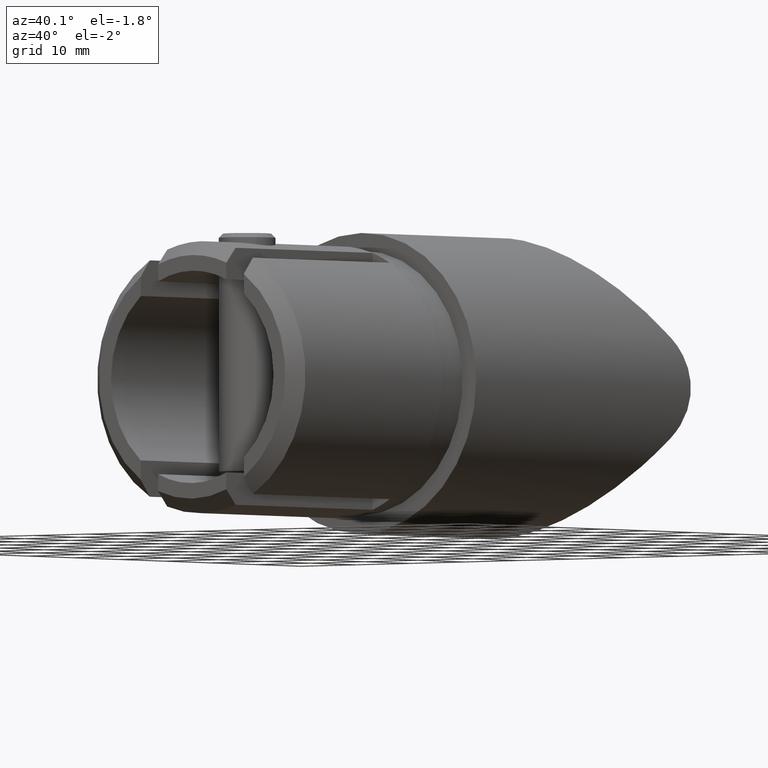
[diagram: clean part render]
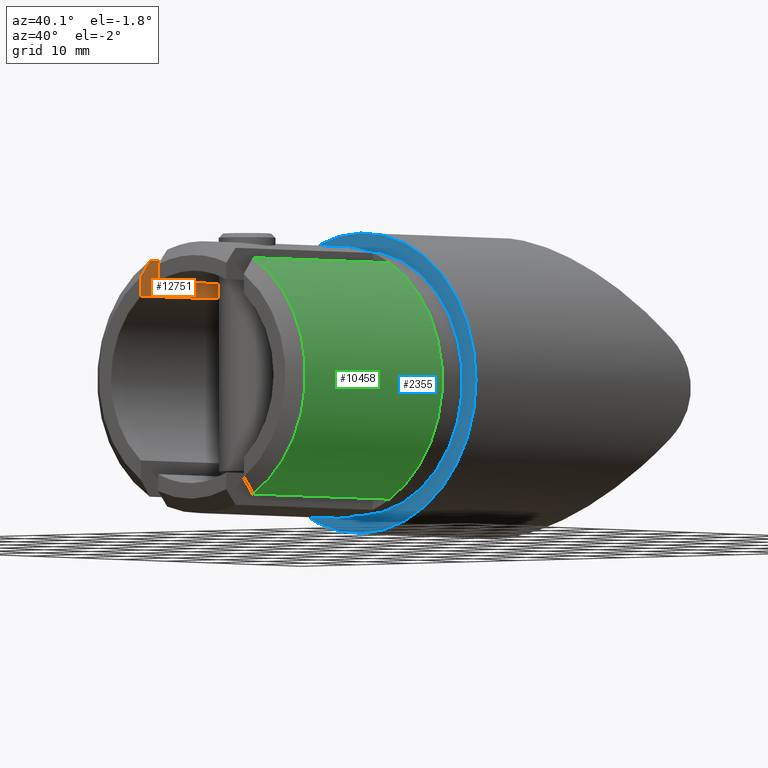
[diagram: same view with three faces highlighted in distinct colors, each labeled with its STEP entity id]
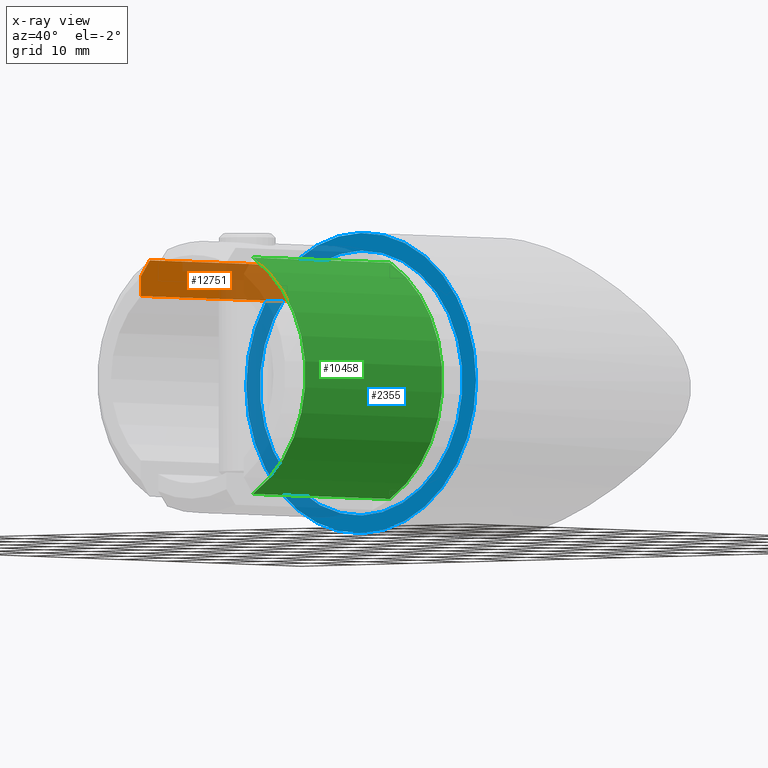
[diagram: x-ray of the same camera — body ghosted, the three highlighted faces saturated]
A machine part, auxiliary view with three faces highlighted in distinct colors.
The next image is the same camera in x-ray (body ghosted, the three faces saturated) — at least one of them is partly hidden behind the body in this view.
Their STEP definitions:

[orange] entity #12751 — the highlighted planar face has unit normal (-1, -0, 0).
#50 = FACE_OUTER_BOUND ( 'NONE', #6334, .T. ) ;
#285 = EDGE_CURVE ( 'NONE', #9121, #7372, #12493, .T. ) ;
#553 = EDGE_CURVE ( 'NONE', #11527, #7372, #5329, .T. ) ;
#873 = VERTEX_POINT ( 'NONE', #9407 ) ;
#2030 = CARTESIAN_POINT ( 'NONE',  ( -9.500000000000000000, -4.999999999999992900, -21.19999999999999900 ) ) ;
#2257 = CARTESIAN_POINT ( 'NONE',  ( -9.500000000000000000, -4.999999999999992900, 16.68502322443694300 ) ) ;
#2274 = VECTOR ( 'NONE', #9682, 1000.000000000000000 ) ;
#2379 = CARTESIAN_POINT ( 'NONE',  ( -9.499999999999996400, -36.34155602263394500, 15.12826297416007800 ) ) ;
#2423 = CARTESIAN_POINT ( 'NONE',  ( -9.499999999999996400, -37.00000000000000000, -21.19999999999999900 ) ) ;
#2469 = DIRECTION ( 'NONE',  ( 1.084202172485504200E-016, -1.000000000000000000, 0.0000000000000000000 ) ) ;
#2499 = EDGE_CURVE ( 'NONE', #9121, #873, #12051, .T. ) ;
#3281 = LINE ( 'NONE', #2423, #7514 ) ;
#4353 = DIRECTION ( 'NONE',  ( -0.0000000000000000000, -0.0000000000000000000, 1.000000000000000000 ) ) ;
#4576 = AXIS2_PLACEMENT_3D ( 'NONE', #11798, #8711, #2469 ) ;
#4701 = CARTESIAN_POINT ( 'NONE',  ( -9.499999999999996400, -35.00000000000000700, 16.68502322443693900 ) ) ;
#5329 = LINE ( 'NONE', #6513, #2274 ) ;
#5492 = EDGE_CURVE ( 'NONE', #11527, #7972, #8843, .T. ) ;
#6334 = EDGE_LOOP ( 'NONE', ( #11752, #12559, #11016, #11866, #9099 ) ) ;
#6513 = CARTESIAN_POINT ( 'NONE',  ( -9.499999999999996400, -37.00000000000000000, 16.68502322443693900 ) ) ;
#7372 = VERTEX_POINT ( 'NONE', #2257 ) ;
#7505 = CARTESIAN_POINT ( 'NONE',  ( -9.499999999999996400, -35.00000000000000700, 16.68502322443693900 ) ) ;
#7514 = VECTOR ( 'NONE', #4353, 1000.000000000000000 ) ;
#7666 = PLANE ( 'NONE',  #4576 ) ;
#7972 = VERTEX_POINT ( 'NONE', #9033 ) ;
#8151 = CARTESIAN_POINT ( 'NONE',  ( -9.500000000000000000, -4.999999999999992900, 11.60818676624390000 ) ) ;
#8711 = DIRECTION ( 'NONE',  ( -1.000000000000000000, -1.084202172485504200E-016, 0.0000000000000000000 ) ) ;
#8843 = B_SPLINE_CURVE_WITH_KNOTS ( 'NONE', 3,
 ( #7505, #9688, #2379, #9648 ),
 .UNSPECIFIED., .F., .F.,
 ( 4, 4 ),
 ( 0.03365632216462369200, 0.03673669280061393800 ),
 .UNSPECIFIED. ) ;
#9033 = CARTESIAN_POINT ( 'NONE',  ( -9.499999999999996400, -37.00000000000000000, 14.33840995368736200 ) ) ;
#9099 = ORIENTED_EDGE ( 'NONE', *, *, #553, .F. ) ;
#9121 = VERTEX_POINT ( 'NONE', #8151 ) ;
#9253 = DIRECTION ( 'NONE',  ( -0.0000000000000000000, -0.0000000000000000000, 1.000000000000000000 ) ) ;
#9407 = CARTESIAN_POINT ( 'NONE',  ( -9.499999999999996400, -37.00000000000000000, 11.60818676624389800 ) ) ;
#9648 = CARTESIAN_POINT ( 'NONE',  ( -9.499999999999996400, -37.00000000000000000, 14.33840995368736200 ) ) ;
#9682 = DIRECTION ( 'NONE',  ( -0.0000000000000000000, 1.000000000000000000, -0.0000000000000000000 ) ) ;
#9688 = CARTESIAN_POINT ( 'NONE',  ( -9.499999999999996400, -35.67389875770415800, 15.90954596115274100 ) ) ;
#10590 = EDGE_CURVE ( 'NONE', #873, #7972, #3281, .T. ) ;
#11016 = ORIENTED_EDGE ( 'NONE', *, *, #2499, .F. ) ;
#11157 = VECTOR ( 'NONE', #9253, 1000.000000000000000 ) ;
#11380 = DIRECTION ( 'NONE',  ( -0.0000000000000000000, -1.000000000000000000, -0.0000000000000000000 ) ) ;
#11527 = VERTEX_POINT ( 'NONE', #4701 ) ;
#11752 = ORIENTED_EDGE ( 'NONE', *, *, #5492, .T. ) ;
#11798 = CARTESIAN_POINT ( 'NONE',  ( -9.500000000000000000, -4.999999999999992900, -21.19999999999999900 ) ) ;
#11866 = ORIENTED_EDGE ( 'NONE', *, *, #285, .T. ) ;
#12051 = LINE ( 'NONE', #12381, #12398 ) ;
#12381 = CARTESIAN_POINT ( 'NONE',  ( -9.500000000000001800, 9.000000000000000000, 11.60818676624389800 ) ) ;
#12398 = VECTOR ( 'NONE', #11380, 1000.000000000000000 ) ;
#12493 = LINE ( 'NONE', #2030, #11157 ) ;
#12559 = ORIENTED_EDGE ( 'NONE', *, *, #10590, .F. ) ;
#12751 = ADVANCED_FACE ( 'NONE', ( #50 ), #7666, .F. ) ;

[blue] entity #2355 — the highlighted planar face has unit normal (0, 1, 0).
#40 = CARTESIAN_POINT ( 'NONE',  ( 0.0000000000000000000, 0.0000000000000000000, -21.19999999999999900 ) ) ;
#275 = DIRECTION ( 'NONE',  ( -0.0000000000000000000, -1.000000000000000000, -0.0000000000000000000 ) ) ;
#523 = CIRCLE ( 'NONE', #12603, 18.69999999999999900 ) ;
#652 = CARTESIAN_POINT ( 'NONE',  ( 2.290089514405550500E-015, 0.0000000000000000000, -18.69999999999999900 ) ) ;
#765 = PLANE ( 'NONE',  #4675 ) ;
#1219 = CARTESIAN_POINT ( 'NONE',  ( 0.0000000000000000000, 0.0000000000000000000, 0.0000000000000000000 ) ) ;
#1464 = EDGE_CURVE ( 'NONE', #2738, #8972, #9694, .T. ) ;
#1760 = DIRECTION ( 'NONE',  ( 0.0000000000000000000, 1.000000000000000000, 0.0000000000000000000 ) ) ;
#2125 = CARTESIAN_POINT ( 'NONE',  ( 0.0000000000000000000, 0.0000000000000000000, 18.69999999999999900 ) ) ;
#2138 = VERTEX_POINT ( 'NONE', #40 ) ;
#2355 = ADVANCED_FACE ( 'NONE', ( #11225, #13052 ), #765, .F. ) ;
#2365 = DIRECTION ( 'NONE',  ( 0.0000000000000000000, 0.0000000000000000000, 1.000000000000000000 ) ) ;
#2565 = CIRCLE ( 'NONE', #6534, 21.19999999999999900 ) ;
#2660 = CARTESIAN_POINT ( 'NONE',  ( 0.0000000000000000000, 0.0000000000000000000, 0.0000000000000000000 ) ) ;
#2725 = AXIS2_PLACEMENT_3D ( 'NONE', #1219, #3233, #11653 ) ;
#2738 = VERTEX_POINT ( 'NONE', #2125 ) ;
#3168 = AXIS2_PLACEMENT_3D ( 'NONE', #8802, #11939, #5675 ) ;
#3233 = DIRECTION ( 'NONE',  ( 0.0000000000000000000, 1.000000000000000000, 0.0000000000000000000 ) ) ;
#3672 = ORIENTED_EDGE ( 'NONE', *, *, #1464, .F. ) ;
#3789 = DIRECTION ( 'NONE',  ( 0.0000000000000000000, 0.0000000000000000000, 1.000000000000000000 ) ) ;
#4675 = AXIS2_PLACEMENT_3D ( 'NONE', #2660, #9080, #12097 ) ;
#4885 = EDGE_LOOP ( 'NONE', ( #7173, #6849 ) ) ;
#5675 = DIRECTION ( 'NONE',  ( 0.0000000000000000000, 0.0000000000000000000, 1.000000000000000000 ) ) ;
#6534 = AXIS2_PLACEMENT_3D ( 'NONE', #11105, #1760, #3789 ) ;
#6849 = ORIENTED_EDGE ( 'NONE', *, *, #7969, .F. ) ;
#7173 = ORIENTED_EDGE ( 'NONE', *, *, #7820, .F. ) ;
#7467 = EDGE_LOOP ( 'NONE', ( #3672, #12373 ) ) ;
#7490 = CARTESIAN_POINT ( 'NONE',  ( 2.596251214192388800E-015, 0.0000000000000000000, 21.19999999999999900 ) ) ;
#7820 = EDGE_CURVE ( 'NONE', #2138, #11123, #11972, .T. ) ;
#7969 = EDGE_CURVE ( 'NONE', #11123, #2138, #2565, .T. ) ;
#8802 = CARTESIAN_POINT ( 'NONE',  ( 0.0000000000000000000, 0.0000000000000000000, 0.0000000000000000000 ) ) ;
#8972 = VERTEX_POINT ( 'NONE', #652 ) ;
#9080 = DIRECTION ( 'NONE',  ( 0.0000000000000000000, 1.000000000000000000, 0.0000000000000000000 ) ) ;
#9694 = CIRCLE ( 'NONE', #3168, 18.69999999999999900 ) ;
#11072 = EDGE_CURVE ( 'NONE', #8972, #2738, #523, .T. ) ;
#11105 = CARTESIAN_POINT ( 'NONE',  ( 0.0000000000000000000, 0.0000000000000000000, 0.0000000000000000000 ) ) ;
#11123 = VERTEX_POINT ( 'NONE', #7490 ) ;
#11225 = FACE_BOUND ( 'NONE', #7467, .T. ) ;
#11653 = DIRECTION ( 'NONE',  ( 0.0000000000000000000, 0.0000000000000000000, 1.000000000000000000 ) ) ;
#11678 = CARTESIAN_POINT ( 'NONE',  ( 0.0000000000000000000, 0.0000000000000000000, 0.0000000000000000000 ) ) ;
#11939 = DIRECTION ( 'NONE',  ( -0.0000000000000000000, -1.000000000000000000, -0.0000000000000000000 ) ) ;
#11972 = CIRCLE ( 'NONE', #2725, 21.19999999999999900 ) ;
#12097 = DIRECTION ( 'NONE',  ( 0.0000000000000000000, -0.0000000000000000000, 1.000000000000000000 ) ) ;
#12373 = ORIENTED_EDGE ( 'NONE', *, *, #11072, .F. ) ;
#12603 = AXIS2_PLACEMENT_3D ( 'NONE', #11678, #275, #2365 ) ;
#13052 = FACE_OUTER_BOUND ( 'NONE', #4885, .T. ) ;

[green] entity #10458 — the highlighted cylindrical surface (partial cylindrical patch) has radius 19.2 mm, axis along (0, 1, 0).
#167 = DIRECTION ( 'NONE',  ( 0.0000000000000000000, 1.000000000000000000, 0.0000000000000000000 ) ) ;
#316 = VERTEX_POINT ( 'NONE', #1107 ) ;
#798 = ORIENTED_EDGE ( 'NONE', *, *, #8490, .T. ) ;
#1038 = DIRECTION ( 'NONE',  ( -0.0000000000000000000, 1.000000000000000000, -0.0000000000000000000 ) ) ;
#1107 = CARTESIAN_POINT ( 'NONE',  ( 9.500000000000005300, -35.00000000000000700, -16.68502322443693600 ) ) ;
#1214 = CARTESIAN_POINT ( 'NONE',  ( 0.0000000000000000000, -37.00000000000000000, 0.0000000000000000000 ) ) ;
#1936 = CARTESIAN_POINT ( 'NONE',  ( 9.500000000000005300, -35.00000000000000700, 16.68502322443693600 ) ) ;
#1981 = ORIENTED_EDGE ( 'NONE', *, *, #4589, .T. ) ;
#2166 = CIRCLE ( 'NONE', #8073, 19.19999999999999900 ) ;
#2248 = DIRECTION ( 'NONE',  ( 0.0000000000000000000, 0.0000000000000000000, 1.000000000000000000 ) ) ;
#2554 = CARTESIAN_POINT ( 'NONE',  ( 9.500000000000000000, -4.999999999999989300, 16.68502322443694300 ) ) ;
#3222 = ORIENTED_EDGE ( 'NONE', *, *, #10389, .T. ) ;
#3275 = DIRECTION ( 'NONE',  ( 0.0000000000000000000, 0.0000000000000000000, -1.000000000000000000 ) ) ;
#3949 = VERTEX_POINT ( 'NONE', #6795 ) ;
#4350 = AXIS2_PLACEMENT_3D ( 'NONE', #6449, #167, #7473 ) ;
#4589 = EDGE_CURVE ( 'NONE', #12681, #6768, #13293, .T. ) ;
#4668 = VECTOR ( 'NONE', #5506, 1000.000000000000000 ) ;
#4875 = EDGE_LOOP ( 'NONE', ( #10413, #798, #3222, #1981 ) ) ;
#4909 = CYLINDRICAL_SURFACE ( 'NONE', #12179, 19.19999999999999900 ) ;
#5411 = DIRECTION ( 'NONE',  ( 0.0000000000000000000, -1.000000000000000000, 0.0000000000000000000 ) ) ;
#5506 = DIRECTION ( 'NONE',  ( -0.0000000000000000000, 1.000000000000000000, -0.0000000000000000000 ) ) ;
#6298 = CARTESIAN_POINT ( 'NONE',  ( 0.0000000000000000000, -4.999999999999986700, 0.0000000000000000000 ) ) ;
#6449 = CARTESIAN_POINT ( 'NONE',  ( 0.0000000000000000000, -35.00000000000000700, 0.0000000000000000000 ) ) ;
#6768 = VERTEX_POINT ( 'NONE', #1936 ) ;
#6770 = LINE ( 'NONE', #9667, #4668 ) ;
#6795 = CARTESIAN_POINT ( 'NONE',  ( 9.500000000000000000, -4.999999999999989300, -16.68502322443693900 ) ) ;
#7362 = EDGE_CURVE ( 'NONE', #6768, #316, #9602, .T. ) ;
#7473 = DIRECTION ( 'NONE',  ( -8.881784197001252300E-016, 0.0000000000000000000, -1.000000000000000000 ) ) ;
#8073 = AXIS2_PLACEMENT_3D ( 'NONE', #6298, #11553, #3275 ) ;
#8490 = EDGE_CURVE ( 'NONE', #316, #3949, #6770, .T. ) ;
#9535 = CARTESIAN_POINT ( 'NONE',  ( 9.500000000000005300, -37.00000000000000000, 16.68502322443693600 ) ) ;
#9602 = CIRCLE ( 'NONE', #4350, 19.19999999999999900 ) ;
#9667 = CARTESIAN_POINT ( 'NONE',  ( 9.500000000000005300, -37.00000000000000000, -16.68502322443693600 ) ) ;
#10389 = EDGE_CURVE ( 'NONE', #3949, #12681, #2166, .T. ) ;
#10413 = ORIENTED_EDGE ( 'NONE', *, *, #7362, .T. ) ;
#10458 = ADVANCED_FACE ( 'NONE', ( #13260 ), #4909, .T. ) ;
#11553 = DIRECTION ( 'NONE',  ( -0.0000000000000000000, -1.000000000000000000, -0.0000000000000000000 ) ) ;
#11929 = VECTOR ( 'NONE', #5411, 1000.000000000000000 ) ;
#12179 = AXIS2_PLACEMENT_3D ( 'NONE', #1214, #1038, #2248 ) ;
#12681 = VERTEX_POINT ( 'NONE', #2554 ) ;
#13260 = FACE_OUTER_BOUND ( 'NONE', #4875, .T. ) ;
#13293 = LINE ( 'NONE', #9535, #11929 ) ;